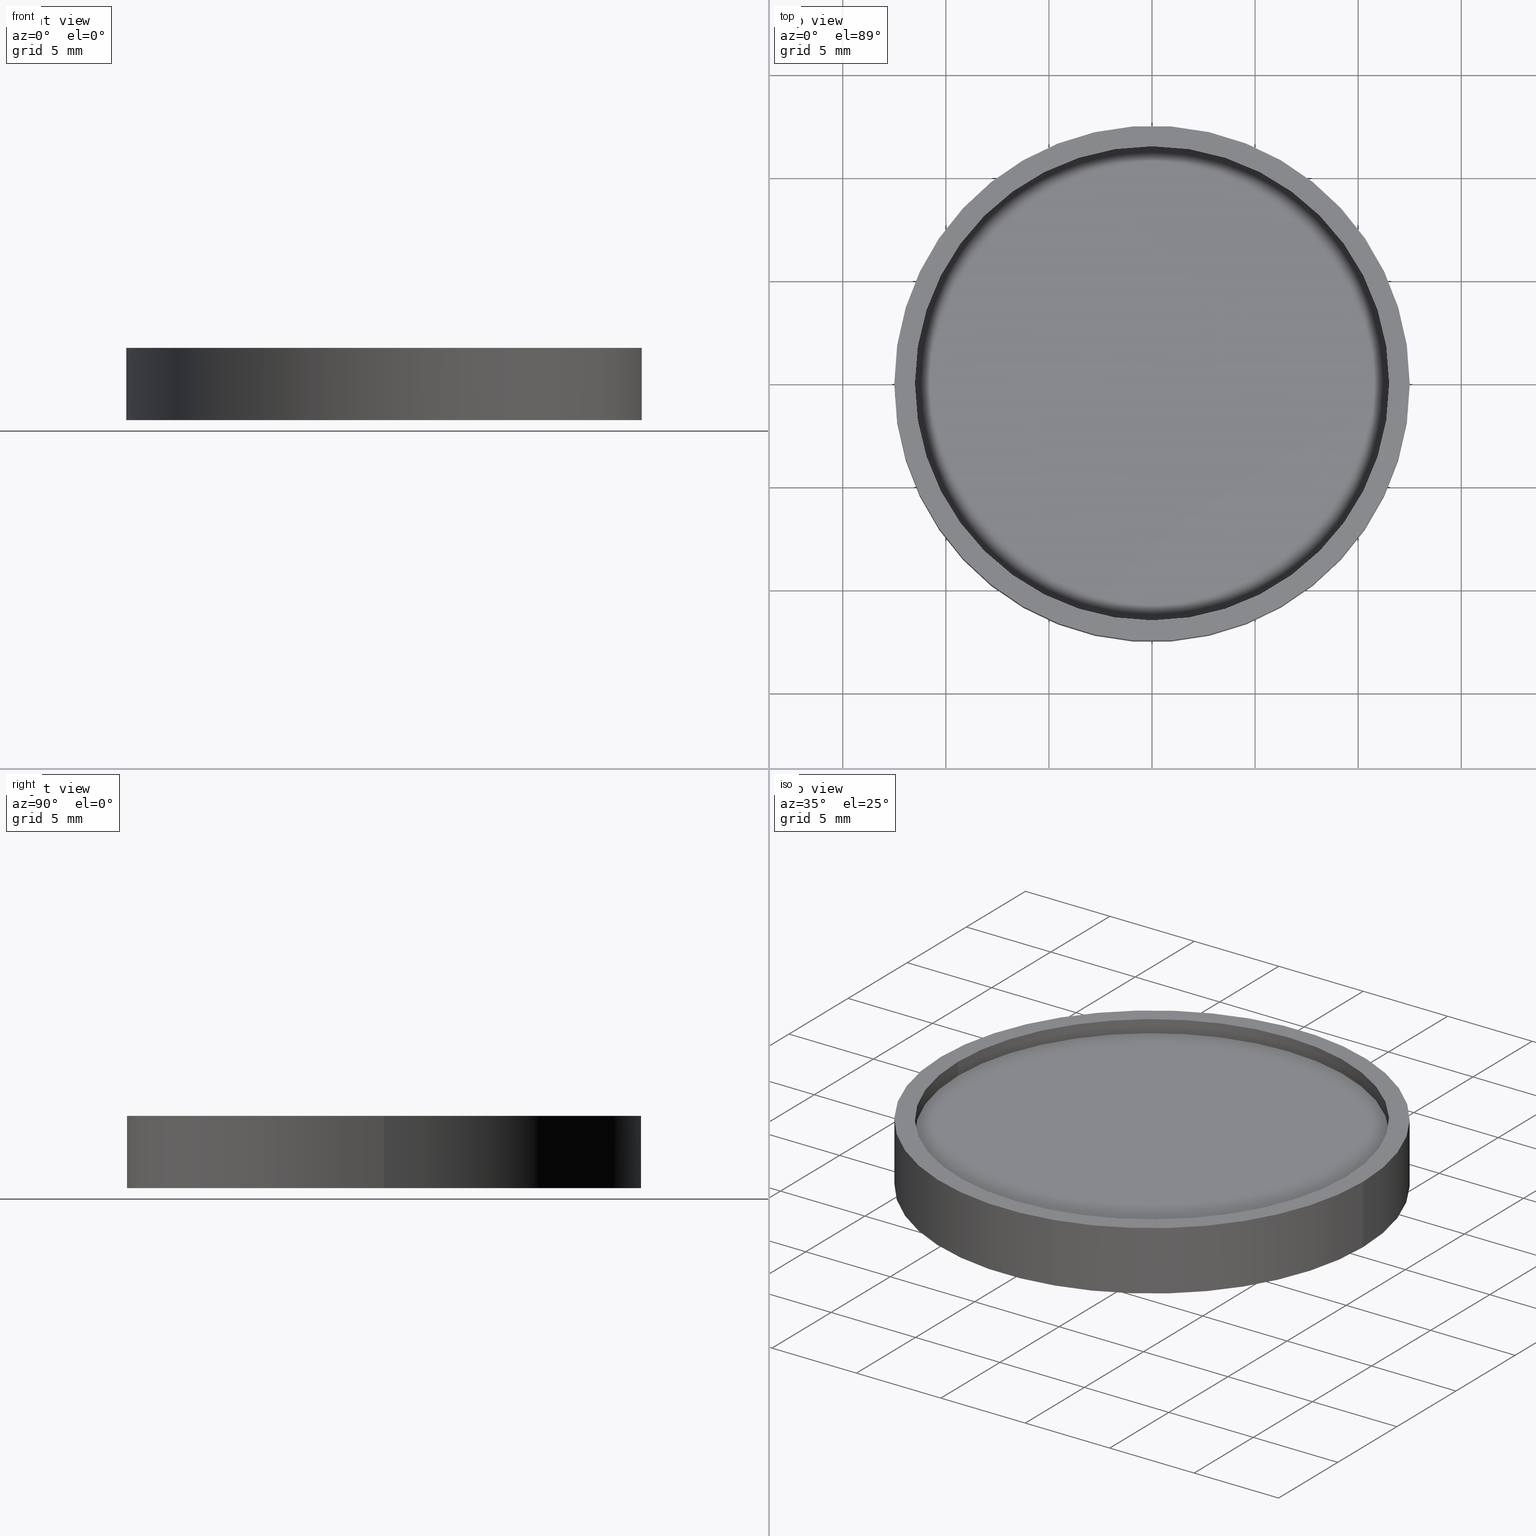
[diagram: canonical four-view strip — front | top / right | iso, engineering-drawing reading convention]
A machine part, canonical four-view strip (front | top / right | iso — engineering-drawing reading convention). The complete STEP part file that produces these views, byte-faithful:
ISO-10303-21;
HEADER;
FILE_DESCRIPTION (( 'STEP AP214' ),
    '1' );
FILE_NAME ('GNIF-045-525-D25.STEP',
    '2024-08-13T06:41:48',
    ( 'Windows User' ),
    ( 'P R C' ),
    'SwSTEP 2.0',
    'SolidWorks 2022',
    '' );
FILE_SCHEMA (( 'AUTOMOTIVE_DESIGN' ));
ENDSEC;

DATA;
#1 = CARTESIAN_POINT ( 'NONE',  ( -12.50000000000000000, 0.000000000000000000, 0.000000000000000000 ) ) ;
#2 =( GEOMETRIC_REPRESENTATION_CONTEXT ( 3 ) GLOBAL_UNCERTAINTY_ASSIGNED_CONTEXT ( ( #303 ) ) GLOBAL_UNIT_ASSIGNED_CONTEXT ( ( #181, #67, #273 ) ) REPRESENTATION_CONTEXT ( 'NONE', 'WORKASPACE' ) );
#3 = SURFACE_STYLE_USAGE ( .BOTH. , #292 ) ;
#4 = MECHANICAL_DESIGN_GEOMETRIC_PRESENTATION_REPRESENTATION (  '', ( #107 ), #244 ) ;
#5 = AXIS2_PLACEMENT_3D ( 'NONE', #350, #61, #188 ) ;
#6 = PRODUCT_DEFINITION ( 'δ֪', '', #26, #400 ) ;
#7 = DIRECTION ( 'NONE',  ( 0.000000000000000000, 0.000000000000000000, 1.000000000000000000 ) ) ;
#8 = COLOUR_RGB ( '',0.2235294117647058654, 0.2235294117647058654, 0.2235294117647058654 ) ;
#9 = STYLED_ITEM ( 'NONE', ( #164 ), #247 ) ;
#10 =( NAMED_UNIT ( * ) SI_UNIT ( $, .STERADIAN. ) SOLID_ANGLE_UNIT ( ) );
#11 = FILL_AREA_STYLE ('',( #137 ) ) ;
#12 = PRESENTATION_LAYER_ASSIGNMENT (  '', '', ( #77 ) ) ;
#13 = FILL_AREA_STYLE_COLOUR ( '', #33 ) ;
#14 = EDGE_CURVE ( 'NONE', #90, #156, #280, .T. ) ;
#15 = CARTESIAN_POINT ( 'NONE',  ( 0.000000000000000000, 0.000000000000000000, 0.000000000000000000 ) ) ;
#16 = CLOSED_SHELL ( 'NONE', ( #305, #311, #203, #266, #119, #191, #134, #249, #326, #41 ) ) ;
#17 = AXIS2_PLACEMENT_3D ( 'NONE', #206, #388, #73 ) ;
#18 = DIRECTION ( 'NONE',  ( -0.000000000000000000, -0.000000000000000000, -1.000000000000000000 ) ) ;
#19 = FILL_AREA_STYLE_COLOUR ( '', #81 ) ;
#20 = MECHANICAL_DESIGN_GEOMETRIC_PRESENTATION_REPRESENTATION (  '', ( #77 ), #176 ) ;
#21 = ORIENTED_EDGE ( 'NONE', *, *, #173, .T. ) ;
#22 = PRESENTATION_STYLE_ASSIGNMENT (( #128 ) ) ;
#23 = CARTESIAN_POINT ( 'NONE',  ( 0.000000000000000000, 0.000000000000000000, 0.000000000000000000 ) ) ;
#24 = EDGE_LOOP ( 'NONE', ( #314, #287 ) ) ;
#25 = SURFACE_STYLE_USAGE ( .BOTH. , #347 ) ;
#26 = PRODUCT_DEFINITION_FORMATION_WITH_SPECIFIED_SOURCE ( '�κ�', '', #58, .NOT_KNOWN. ) ;
#27 = ORIENTED_EDGE ( 'NONE', *, *, #231, .F. ) ;
#28 = ORIENTED_EDGE ( 'NONE', *, *, #355, .T. ) ;
#29 = ORIENTED_EDGE ( 'NONE', *, *, #321, .T. ) ;
#30 = FILL_AREA_STYLE ('',( #250 ) ) ;
#31 = VECTOR ( 'NONE', #307, 1000.000000000000000 ) ;
#32 = ORIENTED_EDGE ( 'NONE', *, *, #98, .T. ) ;
#33 = COLOUR_RGB ( '',0.2235294117647058654, 0.2235294117647058654, 0.2235294117647058654 ) ;
#34 = CIRCLE ( 'NONE', #88, 12.50000000000000000 ) ;
#35 = CYLINDRICAL_SURFACE ( 'NONE', #394, 11.50000000000000000 ) ;
#36 = SURFACE_STYLE_USAGE ( .BOTH. , #332 ) ;
#37 = AXIS2_PLACEMENT_3D ( 'NONE', #370, #147, #87 ) ;
#38 =( NAMED_UNIT ( * ) PLANE_ANGLE_UNIT ( ) SI_UNIT ( $, .RADIAN. ) );
#39 = STYLED_ITEM ( 'NONE', ( #22 ), #41 ) ;
#40 = MECHANICAL_DESIGN_GEOMETRIC_PRESENTATION_REPRESENTATION (  '', ( #71 ), #320 ) ;
#41 = ADVANCED_FACE ( 'NONE', ( #95 ), #167, .F. ) ;
#42 = CIRCLE ( 'NONE', #17, 12.50000000000000000 ) ;
#43 = DIRECTION ( 'NONE',  ( 0.000000000000000000, 0.000000000000000000, 1.000000000000000000 ) ) ;
#44 = UNCERTAINTY_MEASURE_WITH_UNIT (LENGTH_MEASURE( 1.000000000000000082E-05 ), #99, 'distance_accuracy_value', 'NONE');
#45 = FACE_OUTER_BOUND ( 'NONE', #213, .T. ) ;
#46 = CIRCLE ( 'NONE', #241, 11.50000000000000000 ) ;
#47 = MANIFOLD_SOLID_BREP ( '����1', #16 ) ;
#48 = UNCERTAINTY_MEASURE_WITH_UNIT (LENGTH_MEASURE( 1.000000000000000082E-05 ), #165, 'distance_accuracy_value', 'NONE');
#49 =( GEOMETRIC_REPRESENTATION_CONTEXT ( 3 ) GLOBAL_UNCERTAINTY_ASSIGNED_CONTEXT ( ( #330 ) ) GLOBAL_UNIT_ASSIGNED_CONTEXT ( ( #410, #69, #55 ) ) REPRESENTATION_CONTEXT ( 'NONE', 'WORKASPACE' ) );
#50 = PRESENTATION_STYLE_ASSIGNMENT (( #149 ) ) ;
#51 = DIRECTION ( 'NONE',  ( 0.000000000000000000, 0.000000000000000000, 1.000000000000000000 ) ) ;
#52 = PRODUCT_RELATED_PRODUCT_CATEGORY ( 'part', '', ( #58 ) ) ;
#53 = ORIENTED_EDGE ( 'NONE', *, *, #173, .F. ) ;
#54 = COLOUR_RGB ( '',0.2235294117647058654, 0.2235294117647058654, 0.2235294117647058654 ) ;
#55 =( NAMED_UNIT ( * ) SI_UNIT ( $, .STERADIAN. ) SOLID_ANGLE_UNIT ( ) );
#56 = VERTEX_POINT ( 'NONE', #349 ) ;
#57 = PRESENTATION_STYLE_ASSIGNMENT (( #25 ) ) ;
#58 = PRODUCT ( 'GNIF-045-525-D25', 'GNIF-045-525-D25', '', ( #393 ) ) ;
#59 = ORIENTED_EDGE ( 'NONE', *, *, #355, .F. ) ;
#60 = LINE ( 'NONE', #312, #169 ) ;
#61 = DIRECTION ( 'NONE',  ( 0.000000000000000000, 0.000000000000000000, 1.000000000000000000 ) ) ;
#62 = EDGE_CURVE ( 'NONE', #278, #275, #60, .T. ) ;
#63 = ORIENTED_EDGE ( 'NONE', *, *, #98, .F. ) ;
#64 = CARTESIAN_POINT ( 'NONE',  ( 0.000000000000000000, 0.000000000000000000, 0.7500000000000000000 ) ) ;
#65 = CARTESIAN_POINT ( 'NONE',  ( 0.000000000000000000, 0.000000000000000000, 0.000000000000000000 ) ) ;
#66 = ORIENTED_EDGE ( 'NONE', *, *, #396, .F. ) ;
#67 =( NAMED_UNIT ( * ) PLANE_ANGLE_UNIT ( ) SI_UNIT ( $, .RADIAN. ) );
#68 = CIRCLE ( 'NONE', #192, 12.25000000000000711 ) ;
#69 =( NAMED_UNIT ( * ) PLANE_ANGLE_UNIT ( ) SI_UNIT ( $, .RADIAN. ) );
#70 = AXIS2_PLACEMENT_3D ( 'NONE', #238, #208, #175 ) ;
#71 = STYLED_ITEM ( 'NONE', ( #108 ), #119 ) ;
#72 =( LENGTH_UNIT ( ) NAMED_UNIT ( * ) SI_UNIT ( .MILLI., .METRE. ) );
#73 = DIRECTION ( 'NONE',  ( 1.000000000000000000, 0.000000000000000000, 0.000000000000000000 ) ) ;
#74 = DIRECTION ( 'NONE',  ( 1.000000000000000000, 0.000000000000000000, 0.000000000000000000 ) ) ;
#75 = PRESENTATION_STYLE_ASSIGNMENT (( #225 ) ) ;
#76 = MECHANICAL_DESIGN_GEOMETRIC_PRESENTATION_REPRESENTATION (  '', ( #242 ), #49 ) ;
#77 = STYLED_ITEM ( 'NONE', ( #57 ), #203 ) ;
#78 = UNCERTAINTY_MEASURE_WITH_UNIT (LENGTH_MEASURE( 1.000000000000000082E-05 ), #122, 'distance_accuracy_value', 'NONE');
#79 = CARTESIAN_POINT ( 'NONE',  ( 0.000000000000000000, 0.000000000000000000, 3.500000000000000000 ) ) ;
#80 = PLANE ( 'NONE',  #201 ) ;
#81 = COLOUR_RGB ( '',0.2235294117647058654, 0.2235294117647058654, 0.2235294117647058654 ) ;
#82 = COLOUR_RGB ( '',1.000000000000000000, 1.000000000000000000, 1.000000000000000000 ) ;
#83 =( NAMED_UNIT ( * ) PLANE_ANGLE_UNIT ( ) SI_UNIT ( $, .RADIAN. ) );
#84 = FILL_AREA_STYLE ('',( #304 ) ) ;
#85 = FILL_AREA_STYLE_COLOUR ( '', #54 ) ;
#86 = APPLICATION_CONTEXT ( 'automotive_design' ) ;
#87 = DIRECTION ( 'NONE',  ( 1.000000000000000000, 0.000000000000000000, 0.000000000000000000 ) ) ;
#88 = AXIS2_PLACEMENT_3D ( 'NONE', #79, #43, #115 ) ;
#89 = EDGE_CURVE ( 'NONE', #219, #275, #327, .T. ) ;
#90 = VERTEX_POINT ( 'NONE', #243 ) ;
#91 = ORIENTED_EDGE ( 'NONE', *, *, #345, .T. ) ;
#92 = CARTESIAN_POINT ( 'NONE',  ( 0.000000000000000000, 0.000000000000000000, 3.500000000000000000 ) ) ;
#93 = ORIENTED_EDGE ( 'NONE', *, *, #14, .T. ) ;
#94 = CIRCLE ( 'NONE', #376, 11.50000000000000000 ) ;
#95 = FACE_OUTER_BOUND ( 'NONE', #127, .T. ) ;
#96 =( NAMED_UNIT ( * ) SI_UNIT ( $, .STERADIAN. ) SOLID_ANGLE_UNIT ( ) );
#97 = ORIENTED_EDGE ( 'NONE', *, *, #396, .T. ) ;
#98 = EDGE_CURVE ( 'NONE', #151, #278, #136, .T. ) ;
#99 =( LENGTH_UNIT ( ) NAMED_UNIT ( * ) SI_UNIT ( .MILLI., .METRE. ) );
#100 = MECHANICAL_DESIGN_GEOMETRIC_PRESENTATION_REPRESENTATION (  '', ( #39 ), #2 ) ;
#101 = VERTEX_POINT ( 'NONE', #1 ) ;
#102 = CARTESIAN_POINT ( 'NONE',  ( 0.000000000000000000, 0.000000000000000000, 0.000000000000000000 ) ) ;
#103 = DIRECTION ( 'NONE',  ( 1.000000000000000000, 0.000000000000000000, 0.000000000000000000 ) ) ;
#104 = VERTEX_POINT ( 'NONE', #110 ) ;
#105 = DIRECTION ( 'NONE',  ( -0.000000000000000000, -0.000000000000000000, -1.000000000000000000 ) ) ;
#106 = SHAPE_DEFINITION_REPRESENTATION ( #392, #247 ) ;
#107 = STYLED_ITEM ( 'NONE', ( #75 ), #134 ) ;
#108 = PRESENTATION_STYLE_ASSIGNMENT (( #36 ) ) ;
#109 =( GEOMETRIC_REPRESENTATION_CONTEXT ( 3 ) GLOBAL_UNCERTAINTY_ASSIGNED_CONTEXT ( ( #364 ) ) GLOBAL_UNIT_ASSIGNED_CONTEXT ( ( #389, #138, #359 ) ) REPRESENTATION_CONTEXT ( 'NONE', 'WORKASPACE' ) );
#110 = CARTESIAN_POINT ( 'NONE',  ( 11.50000000000000000, 0.000000000000000000, 2.750000000000000000 ) ) ;
#111 = EDGE_CURVE ( 'NONE', #56, #154, #42, .T. ) ;
#112 =( GEOMETRIC_REPRESENTATION_CONTEXT ( 3 ) GLOBAL_UNCERTAINTY_ASSIGNED_CONTEXT ( ( #78 ) ) GLOBAL_UNIT_ASSIGNED_CONTEXT ( ( #122, #274, #331 ) ) REPRESENTATION_CONTEXT ( 'NONE', 'WORKASPACE' ) );
#113 = CARTESIAN_POINT ( 'NONE',  ( 0.000000000000000000, 0.000000000000000000, 0.000000000000000000 ) ) ;
#114 = FACE_OUTER_BOUND ( 'NONE', #125, .T. ) ;
#115 = DIRECTION ( 'NONE',  ( 1.000000000000000000, 0.000000000000000000, 0.000000000000000000 ) ) ;
#116 = FILL_AREA_STYLE ('',( #13 ) ) ;
#117 = MECHANICAL_DESIGN_GEOMETRIC_PRESENTATION_REPRESENTATION (  '', ( #123 ), #358 ) ;
#118 = DIRECTION ( 'NONE',  ( 0.000000000000000000, 0.000000000000000000, 1.000000000000000000 ) ) ;
#119 = ADVANCED_FACE ( 'NONE', ( #397, #162 ), #255, .T. ) ;
#120 = DIRECTION ( 'NONE',  ( 0.000000000000000000, 0.000000000000000000, 1.000000000000000000 ) ) ;
#121 = SURFACE_SIDE_STYLE ('',( #223 ) ) ;
#122 =( LENGTH_UNIT ( ) NAMED_UNIT ( * ) SI_UNIT ( .MILLI., .METRE. ) );
#123 = STYLED_ITEM ( 'NONE', ( #346 ), #47 ) ;
#124 = ORIENTED_EDGE ( 'NONE', *, *, #361, .T. ) ;
#125 = EDGE_LOOP ( 'NONE', ( #408, #189, #132, #282 ) ) ;
#126 = CARTESIAN_POINT ( 'NONE',  ( 11.50000000000000000, 0.000000000000000000, 3.500000000000000000 ) ) ;
#127 = EDGE_LOOP ( 'NONE', ( #246, #380, #344, #245 ) ) ;
#128 = SURFACE_STYLE_USAGE ( .BOTH. , #384 ) ;
#129 = FILL_AREA_STYLE ('',( #377 ) ) ;
#130 = ORIENTED_EDGE ( 'NONE', *, *, #89, .T. ) ;
#131 =( NAMED_UNIT ( * ) SI_UNIT ( $, .STERADIAN. ) SOLID_ANGLE_UNIT ( ) );
#132 = ORIENTED_EDGE ( 'NONE', *, *, #197, .T. ) ;
#133 =( GEOMETRIC_REPRESENTATION_CONTEXT ( 3 ) GLOBAL_UNCERTAINTY_ASSIGNED_CONTEXT ( ( #270 ) ) GLOBAL_UNIT_ASSIGNED_CONTEXT ( ( #343, #83, #367 ) ) REPRESENTATION_CONTEXT ( 'NONE', 'WORKASPACE' ) );
#134 = ADVANCED_FACE ( 'NONE', ( #114 ), #360, .F. ) ;
#135 = SURFACE_SIDE_STYLE ('',( #288 ) ) ;
#136 = CIRCLE ( 'NONE', #153, 11.50000000000000000 ) ;
#137 = FILL_AREA_STYLE_COLOUR ( '', #199 ) ;
#138 =( NAMED_UNIT ( * ) PLANE_ANGLE_UNIT ( ) SI_UNIT ( $, .RADIAN. ) );
#139 = PRESENTATION_LAYER_ASSIGNMENT (  '', '', ( #210 ) ) ;
#140 = COLOUR_RGB ( '',0.2235294117647058654, 0.2235294117647058654, 0.2235294117647058654 ) ;
#141 = DIRECTION ( 'NONE',  ( 0.000000000000000000, 0.000000000000000000, 1.000000000000000000 ) ) ;
#142 = CARTESIAN_POINT ( 'NONE',  ( -11.50000000000000000, 1.408343819019456176E-15, 3.500000000000000000 ) ) ;
#143 = CIRCLE ( 'NONE', #37, 11.50000000000000000 ) ;
#144 = DIRECTION ( 'NONE',  ( 1.000000000000000000, 0.000000000000000000, 0.000000000000000000 ) ) ;
#145 = UNCERTAINTY_MEASURE_WITH_UNIT (LENGTH_MEASURE( 1.000000000000000082E-05 ), #387, 'distance_accuracy_value', 'NONE');
#146 = CYLINDRICAL_SURFACE ( 'NONE', #159, 12.50000000000000000 ) ;
#147 = DIRECTION ( 'NONE',  ( 0.000000000000000000, 0.000000000000000000, 1.000000000000000000 ) ) ;
#148 = UNCERTAINTY_MEASURE_WITH_UNIT (LENGTH_MEASURE( 1.000000000000000082E-05 ), #259, 'distance_accuracy_value', 'NONE');
#149 = SURFACE_STYLE_USAGE ( .BOTH. , #338 ) ;
#150 =( NAMED_UNIT ( * ) PLANE_ANGLE_UNIT ( ) SI_UNIT ( $, .RADIAN. ) );
#151 = VERTEX_POINT ( 'NONE', #329 ) ;
#152 = SURFACE_STYLE_FILL_AREA ( #30 ) ;
#153 = AXIS2_PLACEMENT_3D ( 'NONE', #64, #415, #264 ) ;
#154 = VERTEX_POINT ( 'NONE', #168 ) ;
#155 = FILL_AREA_STYLE ('',( #85 ) ) ;
#156 = VERTEX_POINT ( 'NONE', #142 ) ;
#157 = CARTESIAN_POINT ( 'NONE',  ( -11.50000000000000000, 1.408343819019456176E-15, 2.750000000000000000 ) ) ;
#158 = EDGE_LOOP ( 'NONE', ( #59, #93, #180, #378 ) ) ;
#159 = AXIS2_PLACEMENT_3D ( 'NONE', #92, #170, #333 ) ;
#160 = EDGE_LOOP ( 'NONE', ( #252, #21, #91, #375 ) ) ;
#161 =( NAMED_UNIT ( * ) PLANE_ANGLE_UNIT ( ) SI_UNIT ( $, .RADIAN. ) );
#162 = FACE_OUTER_BOUND ( 'NONE', #24, .T. ) ;
#163 = MECHANICAL_DESIGN_GEOMETRIC_PRESENTATION_REPRESENTATION (  '', ( #232 ), #133 ) ;
#164 = PRESENTATION_STYLE_ASSIGNMENT (( #3 ) ) ;
#165 =( LENGTH_UNIT ( ) NAMED_UNIT ( * ) SI_UNIT ( .MILLI., .METRE. ) );
#166 = EDGE_CURVE ( 'NONE', #154, #56, #34, .T. ) ;
#167 = CONICAL_SURFACE ( 'NONE', #269, 11.50000000000000000, 0.7853981633974471688 ) ;
#168 = CARTESIAN_POINT ( 'NONE',  ( 12.50000000000000000, 1.530808498934191521E-15, 3.500000000000000000 ) ) ;
#169 = VECTOR ( 'NONE', #353, 1000.000000000000000 ) ;
#170 = DIRECTION ( 'NONE',  ( -0.000000000000000000, -0.000000000000000000, -1.000000000000000000 ) ) ;
#171 = SURFACE_STYLE_FILL_AREA ( #116 ) ;
#172 = CIRCLE ( 'NONE', #362, 12.50000000000000000 ) ;
#173 = EDGE_CURVE ( 'NONE', #154, #286, #254, .T. ) ;
#174 = SURFACE_STYLE_USAGE ( .BOTH. , #336 ) ;
#175 = DIRECTION ( 'NONE',  ( -1.000000000000000000, 0.000000000000000000, 0.000000000000000000 ) ) ;
#176 =( GEOMETRIC_REPRESENTATION_CONTEXT ( 3 ) GLOBAL_UNCERTAINTY_ASSIGNED_CONTEXT ( ( #209 ) ) GLOBAL_UNIT_ASSIGNED_CONTEXT ( ( #240, #150, #10 ) ) REPRESENTATION_CONTEXT ( 'NONE', 'WORKASPACE' ) );
#177 = EDGE_LOOP ( 'NONE', ( #348, #32 ) ) ;
#178 = CARTESIAN_POINT ( 'NONE',  ( 11.50000000000000000, 1.408343819019456176E-15, 0.7500000000000093259 ) ) ;
#179 = FILL_AREA_STYLE ('',( #19 ) ) ;
#180 = ORIENTED_EDGE ( 'NONE', *, *, #404, .T. ) ;
#181 =( LENGTH_UNIT ( ) NAMED_UNIT ( * ) SI_UNIT ( .MILLI., .METRE. ) );
#182 = DIRECTION ( 'NONE',  ( 0.000000000000000000, 0.000000000000000000, -1.000000000000000000 ) ) ;
#183 = VECTOR ( 'NONE', #276, 1000.000000000000000 ) ;
#184 = PRESENTATION_LAYER_ASSIGNMENT (  '', '', ( #123 ) ) ;
#185 = SURFACE_STYLE_FILL_AREA ( #155 ) ;
#186 = ORIENTED_EDGE ( 'NONE', *, *, #345, .F. ) ;
#187 =( NAMED_UNIT ( * ) PLANE_ANGLE_UNIT ( ) SI_UNIT ( $, .RADIAN. ) );
#188 = DIRECTION ( 'NONE',  ( 1.000000000000000000, 0.000000000000000000, 0.000000000000000000 ) ) ;
#189 = ORIENTED_EDGE ( 'NONE', *, *, #222, .F. ) ;
#190 = SURFACE_STYLE_USAGE ( .BOTH. , #319 ) ;
#191 = ADVANCED_FACE ( 'NONE', ( #356, #195 ), #406, .F. ) ;
#192 = AXIS2_PLACEMENT_3D ( 'NONE', #65, #7, #74 ) ;
#193 = EDGE_LOOP ( 'NONE', ( #309, #28 ) ) ;
#194 = MECHANICAL_DESIGN_GEOMETRIC_PRESENTATION_REPRESENTATION (  '', ( #337 ), #112 ) ;
#195 = FACE_OUTER_BOUND ( 'NONE', #383, .T. ) ;
#196 = FILL_AREA_STYLE ('',( #226 ) ) ;
#197 = EDGE_CURVE ( 'NONE', #104, #373, #402, .T. ) ;
#198 = DIRECTION ( 'NONE',  ( 0.000000000000000000, 0.000000000000000000, 1.000000000000000000 ) ) ;
#199 = COLOUR_RGB ( '',0.2235294117647058654, 0.2235294117647058654, 0.2235294117647058654 ) ;
#200 = DIRECTION ( 'NONE',  ( 1.000000000000000000, 0.000000000000000000, 0.000000000000000000 ) ) ;
#201 = AXIS2_PLACEMENT_3D ( 'NONE', #407, #118, #205 ) ;
#202 = CARTESIAN_POINT ( 'NONE',  ( 0.000000000000000000, 0.000000000000000000, 2.750000000000000000 ) ) ;
#203 = ADVANCED_FACE ( 'NONE', ( #302 ), #239, .T. ) ;
#204 = AXIS2_PLACEMENT_3D ( 'NONE', #297, #324, #418 ) ;
#205 = DIRECTION ( 'NONE',  ( 1.000000000000000000, 0.000000000000000000, -0.000000000000000000 ) ) ;
#206 = CARTESIAN_POINT ( 'NONE',  ( 0.000000000000000000, 0.000000000000000000, 3.500000000000000000 ) ) ;
#207 = PRESENTATION_LAYER_ASSIGNMENT (  '', '', ( #9 ) ) ;
#208 = DIRECTION ( 'NONE',  ( 0.000000000000000000, 0.000000000000000000, -1.000000000000000000 ) ) ;
#209 = UNCERTAINTY_MEASURE_WITH_UNIT (LENGTH_MEASURE( 1.000000000000000082E-05 ), #240, 'distance_accuracy_value', 'NONE');
#210 = STYLED_ITEM ( 'NONE', ( #385 ), #311 ) ;
#211 = COLOUR_RGB ( '',0.2235294117647058654, 0.2235294117647058654, 0.2235294117647058654 ) ;
#212 = SURFACE_STYLE_FILL_AREA ( #84 ) ;
#213 = EDGE_LOOP ( 'NONE', ( #63, #124, #66, #248 ) ) ;
#214 = ORIENTED_EDGE ( 'NONE', *, *, #404, .F. ) ;
#215 = FILL_AREA_STYLE_COLOUR ( '', #372 ) ;
#216 = DIRECTION ( 'NONE',  ( 1.000000000000000000, 0.000000000000000000, 0.000000000000000000 ) ) ;
#217 = EDGE_LOOP ( 'NONE', ( #53, #414, #29, #417 ) ) ;
#218 = LINE ( 'NONE', #382, #229 ) ;
#219 = VERTEX_POINT ( 'NONE', #234 ) ;
#220 = DIRECTION ( 'NONE',  ( 0.000000000000000000, 0.000000000000000000, -1.000000000000000000 ) ) ;
#221 = LINE ( 'NONE', #178, #31 ) ;
#222 = EDGE_CURVE ( 'NONE', #104, #90, #143, .T. ) ;
#223 = SURFACE_STYLE_FILL_AREA ( #340 ) ;
#224 = CARTESIAN_POINT ( 'NONE',  ( 0.000000000000000000, 0.000000000000000000, 0.7500000000000000000 ) ) ;
#225 = SURFACE_STYLE_USAGE ( .BOTH. , #135 ) ;
#226 = FILL_AREA_STYLE_COLOUR ( '', #82 ) ;
#227 = DIRECTION ( 'NONE',  ( -0.000000000000000000, -0.000000000000000000, 1.000000000000000000 ) ) ;
#228 = CARTESIAN_POINT ( 'NONE',  ( 0.000000000000000000, 0.000000000000000000, 3.500000000000000000 ) ) ;
#229 = VECTOR ( 'NONE', #281, 1000.000000000000000 ) ;
#230 = PRESENTATION_LAYER_ASSIGNMENT (  '', '', ( #337 ) ) ;
#231 = EDGE_CURVE ( 'NONE', #373, #156, #94, .T. ) ;
#232 = STYLED_ITEM ( 'NONE', ( #300 ), #191 ) ;
#233 =( NAMED_UNIT ( * ) SI_UNIT ( $, .STERADIAN. ) SOLID_ANGLE_UNIT ( ) );
#234 = CARTESIAN_POINT ( 'NONE',  ( 12.25000000000000711, 1.500192328955508523E-15, 0.000000000000000000 ) ) ;
#235 = SURFACE_STYLE_FILL_AREA ( #290 ) ;
#236 = CARTESIAN_POINT ( 'NONE',  ( 0.000000000000000000, 0.000000000000000000, 0.7500000000000093259 ) ) ;
#237 = SURFACE_STYLE_FILL_AREA ( #179 ) ;
#238 = CARTESIAN_POINT ( 'NONE',  ( 0.000000000000000000, 0.000000000000000000, 0.7500000000000000000 ) ) ;
#239 = CYLINDRICAL_SURFACE ( 'NONE', #265, 12.50000000000000000 ) ;
#240 =( LENGTH_UNIT ( ) NAMED_UNIT ( * ) SI_UNIT ( .MILLI., .METRE. ) );
#241 = AXIS2_PLACEMENT_3D ( 'NONE', #315, #289, #342 ) ;
#242 = STYLED_ITEM ( 'NONE', ( #352 ), #305 ) ;
#243 = CARTESIAN_POINT ( 'NONE',  ( -11.50000000000000000, 1.408343819019456176E-15, 2.750000000000000000 ) ) ;
#244 =( GEOMETRIC_REPRESENTATION_CONTEXT ( 3 ) GLOBAL_UNCERTAINTY_ASSIGNED_CONTEXT ( ( #48 ) ) GLOBAL_UNIT_ASSIGNED_CONTEXT ( ( #165, #38, #233 ) ) REPRESENTATION_CONTEXT ( 'NONE', 'WORKASPACE' ) );
#245 = ORIENTED_EDGE ( 'NONE', *, *, #89, .F. ) ;
#246 = ORIENTED_EDGE ( 'NONE', *, *, #361, .F. ) ;
#247 = ADVANCED_BREP_SHAPE_REPRESENTATION ( 'GNIF-045-525-D25', ( #47, #374 ), #109 ) ;
#248 = ORIENTED_EDGE ( 'NONE', *, *, #62, .F. ) ;
#249 = ADVANCED_FACE ( 'NONE', ( #368 ), #80, .T. ) ;
#250 = FILL_AREA_STYLE_COLOUR ( '', #256 ) ;
#251 = DIRECTION ( 'NONE',  ( 0.000000000000000000, 0.000000000000000000, -1.000000000000000000 ) ) ;
#252 = ORIENTED_EDGE ( 'NONE', *, *, #166, .F. ) ;
#253 = CARTESIAN_POINT ( 'NONE',  ( 0.000000000000000000, 0.000000000000000000, 2.750000000000000000 ) ) ;
#254 = LINE ( 'NONE', #386, #257 ) ;
#255 = PLANE ( 'NONE',  #204 ) ;
#256 = COLOUR_RGB ( '',0.2235294117647058654, 0.2235294117647058654, 0.2235294117647058654 ) ;
#257 = VECTOR ( 'NONE', #105, 1000.000000000000000 ) ;
#258 =( NAMED_UNIT ( * ) SI_UNIT ( $, .STERADIAN. ) SOLID_ANGLE_UNIT ( ) );
#259 =( LENGTH_UNIT ( ) NAMED_UNIT ( * ) SI_UNIT ( .MILLI., .METRE. ) );
#260 = APPLICATION_CONTEXT ( 'automotive_design' ) ;
#261 =( GEOMETRIC_REPRESENTATION_CONTEXT ( 3 ) GLOBAL_UNCERTAINTY_ASSIGNED_CONTEXT ( ( #145 ) ) GLOBAL_UNIT_ASSIGNED_CONTEXT ( ( #387, #161, #96 ) ) REPRESENTATION_CONTEXT ( 'NONE', 'WORKASPACE' ) );
#262 = EDGE_CURVE ( 'NONE', #278, #151, #395, .T. ) ;
#263 = AXIS2_PLACEMENT_3D ( 'NONE', #202, #227, #144 ) ;
#264 = DIRECTION ( 'NONE',  ( -1.000000000000000000, 0.000000000000000000, 0.000000000000000000 ) ) ;
#265 = AXIS2_PLACEMENT_3D ( 'NONE', #366, #18, #271 ) ;
#266 = ADVANCED_FACE ( 'NONE', ( #399 ), #146, .T. ) ;
#267 = DIRECTION ( 'NONE',  ( 1.000000000000000000, 0.000000000000000000, -0.000000000000000000 ) ) ;
#268 = PRESENTATION_LAYER_ASSIGNMENT (  '', '', ( #39 ) ) ;
#269 = AXIS2_PLACEMENT_3D ( 'NONE', #409, #220, #283 ) ;
#270 = UNCERTAINTY_MEASURE_WITH_UNIT (LENGTH_MEASURE( 1.000000000000000082E-05 ), #343, 'distance_accuracy_value', 'NONE');
#271 = DIRECTION ( 'NONE',  ( -1.000000000000000000, 0.000000000000000000, 0.000000000000000000 ) ) ;
#272 = DIRECTION ( 'NONE',  ( 1.000000000000000000, 0.000000000000000000, 0.000000000000000000 ) ) ;
#273 =( NAMED_UNIT ( * ) SI_UNIT ( $, .STERADIAN. ) SOLID_ANGLE_UNIT ( ) );
#274 =( NAMED_UNIT ( * ) PLANE_ANGLE_UNIT ( ) SI_UNIT ( $, .RADIAN. ) );
#275 = VERTEX_POINT ( 'NONE', #296 ) ;
#276 = DIRECTION ( 'NONE',  ( -0.000000000000000000, -0.000000000000000000, 1.000000000000000000 ) ) ;
#277 = PRESENTATION_LAYER_ASSIGNMENT (  '', '', ( #71 ) ) ;
#278 = VERTEX_POINT ( 'NONE', #299 ) ;
#279 =( GEOMETRIC_REPRESENTATION_CONTEXT ( 3 ) GLOBAL_UNCERTAINTY_ASSIGNED_CONTEXT ( ( #148 ) ) GLOBAL_UNIT_ASSIGNED_CONTEXT ( ( #259, #291, #357 ) ) REPRESENTATION_CONTEXT ( 'NONE', 'WORKASPACE' ) );
#280 = LINE ( 'NONE', #157, #183 ) ;
#281 = DIRECTION ( 'NONE',  ( -0.000000000000000000, -0.000000000000000000, -1.000000000000000000 ) ) ;
#282 = ORIENTED_EDGE ( 'NONE', *, *, #231, .T. ) ;
#283 = DIRECTION ( 'NONE',  ( -1.000000000000000000, 0.000000000000000000, 0.000000000000000000 ) ) ;
#284 = FACE_OUTER_BOUND ( 'NONE', #177, .T. ) ;
#285 = AXIS2_PLACEMENT_3D ( 'NONE', #228, #141, #325 ) ;
#286 = VERTEX_POINT ( 'NONE', #401 ) ;
#287 = ORIENTED_EDGE ( 'NONE', *, *, #166, .T. ) ;
#288 = SURFACE_STYLE_FILL_AREA ( #11 ) ;
#289 = DIRECTION ( 'NONE',  ( 0.000000000000000000, 0.000000000000000000, 1.000000000000000000 ) ) ;
#290 = FILL_AREA_STYLE ('',( #322 ) ) ;
#291 =( NAMED_UNIT ( * ) PLANE_ANGLE_UNIT ( ) SI_UNIT ( $, .RADIAN. ) );
#292 = SURFACE_SIDE_STYLE ('',( #328 ) ) ;
#293 = APPLICATION_PROTOCOL_DEFINITION ( 'draft international standard', 'automotive_design', 1998, #86 ) ;
#294 = CIRCLE ( 'NONE', #285, 11.50000000000000000 ) ;
#295 = APPLICATION_PROTOCOL_DEFINITION ( 'draft international standard', 'automotive_design', 1998, #260 ) ;
#296 = CARTESIAN_POINT ( 'NONE',  ( -12.25000000000000711, 0.000000000000000000, 0.000000000000000000 ) ) ;
#297 = CARTESIAN_POINT ( 'NONE',  ( 0.000000000000000000, 0.000000000000000000, 3.500000000000000000 ) ) ;
#298 = UNCERTAINTY_MEASURE_WITH_UNIT (LENGTH_MEASURE( 1.000000000000000082E-05 ), #72, 'distance_accuracy_value', 'NONE');
#299 = CARTESIAN_POINT ( 'NONE',  ( -11.50000000000000000, 0.000000000000000000, 0.7500000000000000000 ) ) ;
#300 = PRESENTATION_STYLE_ASSIGNMENT (( #174 ) ) ;
#301 = SURFACE_SIDE_STYLE ('',( #171 ) ) ;
#302 = FACE_OUTER_BOUND ( 'NONE', #160, .T. ) ;
#303 = UNCERTAINTY_MEASURE_WITH_UNIT (LENGTH_MEASURE( 1.000000000000000082E-05 ), #181, 'distance_accuracy_value', 'NONE');
#304 = FILL_AREA_STYLE_COLOUR ( '', #211 ) ;
#305 = ADVANCED_FACE ( 'NONE', ( #45 ), #318, .F. ) ;
#306 = DIRECTION ( 'NONE',  ( 0.000000000000000000, 0.000000000000000000, 1.000000000000000000 ) ) ;
#307 = DIRECTION ( 'NONE',  ( 0.7071067811865467956, 8.659560562354925463E-17, -0.7071067811865483499 ) ) ;
#308 = CARTESIAN_POINT ( 'NONE',  ( 11.50000000000000000, 0.000000000000000000, 2.750000000000000000 ) ) ;
#309 = ORIENTED_EDGE ( 'NONE', *, *, #222, .T. ) ;
#310 = SURFACE_STYLE_FILL_AREA ( #129 ) ;
#311 = ADVANCED_FACE ( 'NONE', ( #416 ), #35, .F. ) ;
#312 = CARTESIAN_POINT ( 'NONE',  ( -11.50000000000000000, 0.000000000000000000, 0.7500000000000093259 ) ) ;
#313 = DIRECTION ( 'NONE',  ( -1.000000000000000000, 0.000000000000000000, 0.000000000000000000 ) ) ;
#314 = ORIENTED_EDGE ( 'NONE', *, *, #111, .T. ) ;
#315 = CARTESIAN_POINT ( 'NONE',  ( 0.000000000000000000, 0.000000000000000000, 2.750000000000000000 ) ) ;
#316 = CIRCLE ( 'NONE', #5, 12.50000000000000000 ) ;
#317 = EDGE_LOOP ( 'NONE', ( #97, #130 ) ) ;
#318 = CONICAL_SURFACE ( 'NONE', #371, 11.50000000000000000, 0.7853981633974471688 ) ;
#319 = SURFACE_SIDE_STYLE ('',( #310 ) ) ;
#320 =( GEOMETRIC_REPRESENTATION_CONTEXT ( 3 ) GLOBAL_UNCERTAINTY_ASSIGNED_CONTEXT ( ( #298 ) ) GLOBAL_UNIT_ASSIGNED_CONTEXT ( ( #72, #420, #258 ) ) REPRESENTATION_CONTEXT ( 'NONE', 'WORKASPACE' ) );
#321 = EDGE_CURVE ( 'NONE', #56, #101, #218, .T. ) ;
#322 = FILL_AREA_STYLE_COLOUR ( '', #8 ) ;
#323 = VECTOR ( 'NONE', #334, 1000.000000000000000 ) ;
#324 = DIRECTION ( 'NONE',  ( 0.000000000000000000, 0.000000000000000000, 1.000000000000000000 ) ) ;
#325 = DIRECTION ( 'NONE',  ( 1.000000000000000000, 0.000000000000000000, 0.000000000000000000 ) ) ;
#326 = ADVANCED_FACE ( 'NONE', ( #284 ), #412, .T. ) ;
#327 = CIRCLE ( 'NONE', #403, 12.25000000000000711 ) ;
#328 = SURFACE_STYLE_FILL_AREA ( #196 ) ;
#329 = CARTESIAN_POINT ( 'NONE',  ( 11.50000000000000000, 1.454268073987482448E-15, 0.7500000000000000000 ) ) ;
#330 = UNCERTAINTY_MEASURE_WITH_UNIT (LENGTH_MEASURE( 1.000000000000000082E-05 ), #410, 'distance_accuracy_value', 'NONE');
#331 =( NAMED_UNIT ( * ) SI_UNIT ( $, .STERADIAN. ) SOLID_ANGLE_UNIT ( ) );
#332 = SURFACE_SIDE_STYLE ('',( #235 ) ) ;
#333 = DIRECTION ( 'NONE',  ( -1.000000000000000000, 0.000000000000000000, 0.000000000000000000 ) ) ;
#334 = DIRECTION ( 'NONE',  ( -0.000000000000000000, -0.000000000000000000, 1.000000000000000000 ) ) ;
#335 = MECHANICAL_DESIGN_GEOMETRIC_PRESENTATION_REPRESENTATION (  '', ( #210 ), #261 ) ;
#336 = SURFACE_SIDE_STYLE ('',( #237 ) ) ;
#337 = STYLED_ITEM ( 'NONE', ( #50 ), #266 ) ;
#338 = SURFACE_SIDE_STYLE ('',( #212 ) ) ;
#339 = ORIENTED_EDGE ( 'NONE', *, *, #390, .F. ) ;
#340 = FILL_AREA_STYLE ('',( #215 ) ) ;
#341 = PRESENTATION_LAYER_ASSIGNMENT (  '', '', ( #232 ) ) ;
#342 = DIRECTION ( 'NONE',  ( 1.000000000000000000, 0.000000000000000000, 0.000000000000000000 ) ) ;
#343 =( LENGTH_UNIT ( ) NAMED_UNIT ( * ) SI_UNIT ( .MILLI., .METRE. ) );
#344 = ORIENTED_EDGE ( 'NONE', *, *, #62, .T. ) ;
#345 = EDGE_CURVE ( 'NONE', #286, #101, #172, .T. ) ;
#346 = PRESENTATION_STYLE_ASSIGNMENT (( #381 ) ) ;
#347 = SURFACE_SIDE_STYLE ('',( #185 ) ) ;
#348 = ORIENTED_EDGE ( 'NONE', *, *, #262, .T. ) ;
#349 = CARTESIAN_POINT ( 'NONE',  ( -12.50000000000000000, 0.000000000000000000, 3.500000000000000000 ) ) ;
#350 = CARTESIAN_POINT ( 'NONE',  ( 0.000000000000000000, 0.000000000000000000, 0.000000000000000000 ) ) ;
#351 = DIRECTION ( 'NONE',  ( 1.000000000000000000, 0.000000000000000000, 0.000000000000000000 ) ) ;
#352 = PRESENTATION_STYLE_ASSIGNMENT (( #419 ) ) ;
#353 = DIRECTION ( 'NONE',  ( -0.7071067811865467956, 0.000000000000000000, -0.7071067811865483499 ) ) ;
#354 = DIRECTION ( 'NONE',  ( -1.000000000000000000, 0.000000000000000000, -0.000000000000000000 ) ) ;
#355 = EDGE_CURVE ( 'NONE', #90, #104, #46, .T. ) ;
#356 = FACE_BOUND ( 'NONE', #317, .T. ) ;
#357 =( NAMED_UNIT ( * ) SI_UNIT ( $, .STERADIAN. ) SOLID_ANGLE_UNIT ( ) );
#358 =( GEOMETRIC_REPRESENTATION_CONTEXT ( 3 ) GLOBAL_UNCERTAINTY_ASSIGNED_CONTEXT ( ( #44 ) ) GLOBAL_UNIT_ASSIGNED_CONTEXT ( ( #99, #187, #131 ) ) REPRESENTATION_CONTEXT ( 'NONE', 'WORKASPACE' ) );
#359 =( NAMED_UNIT ( * ) SI_UNIT ( $, .STERADIAN. ) SOLID_ANGLE_UNIT ( ) );
#360 = CYLINDRICAL_SURFACE ( 'NONE', #263, 11.50000000000000000 ) ;
#361 = EDGE_CURVE ( 'NONE', #151, #219, #221, .T. ) ;
#362 = AXIS2_PLACEMENT_3D ( 'NONE', #23, #413, #103 ) ;
#363 = PRESENTATION_LAYER_ASSIGNMENT (  '', '', ( #242 ) ) ;
#364 = UNCERTAINTY_MEASURE_WITH_UNIT (LENGTH_MEASURE( 1.000000000000000082E-05 ), #389, 'distance_accuracy_value', 'NONE');
#365 = PRESENTATION_LAYER_ASSIGNMENT (  '', '', ( #107 ) ) ;
#366 = CARTESIAN_POINT ( 'NONE',  ( 0.000000000000000000, 0.000000000000000000, 3.500000000000000000 ) ) ;
#367 =( NAMED_UNIT ( * ) SI_UNIT ( $, .STERADIAN. ) SOLID_ANGLE_UNIT ( ) );
#368 = FACE_OUTER_BOUND ( 'NONE', #193, .T. ) ;
#369 = AXIS2_PLACEMENT_3D ( 'NONE', #224, #251, #354 ) ;
#370 = CARTESIAN_POINT ( 'NONE',  ( 0.000000000000000000, 0.000000000000000000, 2.750000000000000000 ) ) ;
#371 = AXIS2_PLACEMENT_3D ( 'NONE', #236, #182, #313 ) ;
#372 = COLOUR_RGB ( '',1.000000000000000000, 1.000000000000000000, 1.000000000000000000 ) ;
#373 = VERTEX_POINT ( 'NONE', #126 ) ;
#374 = AXIS2_PLACEMENT_3D ( 'NONE', #113, #198, #200 ) ;
#375 = ORIENTED_EDGE ( 'NONE', *, *, #321, .F. ) ;
#376 = AXIS2_PLACEMENT_3D ( 'NONE', #405, #120, #272 ) ;
#377 = FILL_AREA_STYLE_COLOUR ( '', #140 ) ;
#378 = ORIENTED_EDGE ( 'NONE', *, *, #197, .F. ) ;
#379 = DIRECTION ( 'NONE',  ( -0.000000000000000000, -0.000000000000000000, 1.000000000000000000 ) ) ;
#380 = ORIENTED_EDGE ( 'NONE', *, *, #262, .F. ) ;
#381 = SURFACE_STYLE_USAGE ( .BOTH. , #121 ) ;
#382 = CARTESIAN_POINT ( 'NONE',  ( -12.50000000000000000, 0.000000000000000000, 3.500000000000000000 ) ) ;
#383 = EDGE_LOOP ( 'NONE', ( #339, #186 ) ) ;
#384 = SURFACE_SIDE_STYLE ('',( #152 ) ) ;
#385 = PRESENTATION_STYLE_ASSIGNMENT (( #190 ) ) ;
#386 = CARTESIAN_POINT ( 'NONE',  ( 12.50000000000000000, 1.530808498934191521E-15, 3.500000000000000000 ) ) ;
#387 =( LENGTH_UNIT ( ) NAMED_UNIT ( * ) SI_UNIT ( .MILLI., .METRE. ) );
#388 = DIRECTION ( 'NONE',  ( 0.000000000000000000, 0.000000000000000000, 1.000000000000000000 ) ) ;
#389 =( LENGTH_UNIT ( ) NAMED_UNIT ( * ) SI_UNIT ( .MILLI., .METRE. ) );
#390 = EDGE_CURVE ( 'NONE', #101, #286, #316, .T. ) ;
#391 = MECHANICAL_DESIGN_GEOMETRIC_PRESENTATION_REPRESENTATION (  '', ( #9 ), #279 ) ;
#392 = PRODUCT_DEFINITION_SHAPE ( 'NONE', 'NONE',  #6 ) ;
#393 = PRODUCT_CONTEXT ( 'NONE', #260, 'mechanical' ) ;
#394 = AXIS2_PLACEMENT_3D ( 'NONE', #253, #379, #216 ) ;
#395 = CIRCLE ( 'NONE', #70, 11.50000000000000000 ) ;
#396 = EDGE_CURVE ( 'NONE', #275, #219, #68, .T. ) ;
#397 = FACE_BOUND ( 'NONE', #411, .T. ) ;
#398 = AXIS2_PLACEMENT_3D ( 'NONE', #15, #51, #267 ) ;
#399 = FACE_OUTER_BOUND ( 'NONE', #217, .T. ) ;
#400 = PRODUCT_DEFINITION_CONTEXT ( 'detailed design', #86, 'design' ) ;
#401 = CARTESIAN_POINT ( 'NONE',  ( 12.50000000000000000, 1.530808498934191521E-15, 0.000000000000000000 ) ) ;
#402 = LINE ( 'NONE', #308, #323 ) ;
#403 = AXIS2_PLACEMENT_3D ( 'NONE', #102, #306, #351 ) ;
#404 = EDGE_CURVE ( 'NONE', #156, #373, #294, .T. ) ;
#405 = CARTESIAN_POINT ( 'NONE',  ( 0.000000000000000000, 0.000000000000000000, 3.500000000000000000 ) ) ;
#406 = PLANE ( 'NONE',  #398 ) ;
#407 = CARTESIAN_POINT ( 'NONE',  ( 0.000000000000000000, 0.000000000000000000, 2.750000000000000000 ) ) ;
#408 = ORIENTED_EDGE ( 'NONE', *, *, #14, .F. ) ;
#409 = CARTESIAN_POINT ( 'NONE',  ( 0.000000000000000000, 0.000000000000000000, 0.7500000000000093259 ) ) ;
#410 =( LENGTH_UNIT ( ) NAMED_UNIT ( * ) SI_UNIT ( .MILLI., .METRE. ) );
#411 = EDGE_LOOP ( 'NONE', ( #27, #214 ) ) ;
#412 = PLANE ( 'NONE',  #369 ) ;
#413 = DIRECTION ( 'NONE',  ( 0.000000000000000000, 0.000000000000000000, 1.000000000000000000 ) ) ;
#414 = ORIENTED_EDGE ( 'NONE', *, *, #111, .F. ) ;
#415 = DIRECTION ( 'NONE',  ( 0.000000000000000000, 0.000000000000000000, -1.000000000000000000 ) ) ;
#416 = FACE_OUTER_BOUND ( 'NONE', #158, .T. ) ;
#417 = ORIENTED_EDGE ( 'NONE', *, *, #390, .T. ) ;
#418 = DIRECTION ( 'NONE',  ( 1.000000000000000000, 0.000000000000000000, -0.000000000000000000 ) ) ;
#419 = SURFACE_STYLE_USAGE ( .BOTH. , #301 ) ;
#420 =( NAMED_UNIT ( * ) PLANE_ANGLE_UNIT ( ) SI_UNIT ( $, .RADIAN. ) );
ENDSEC;
END-ISO-10303-21;
